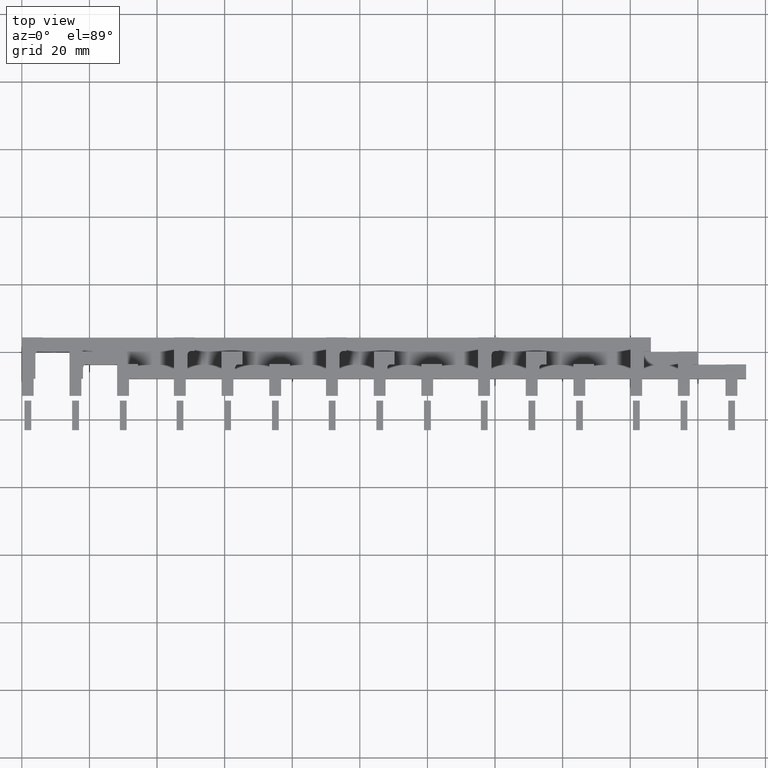
[diagram: clean part render]
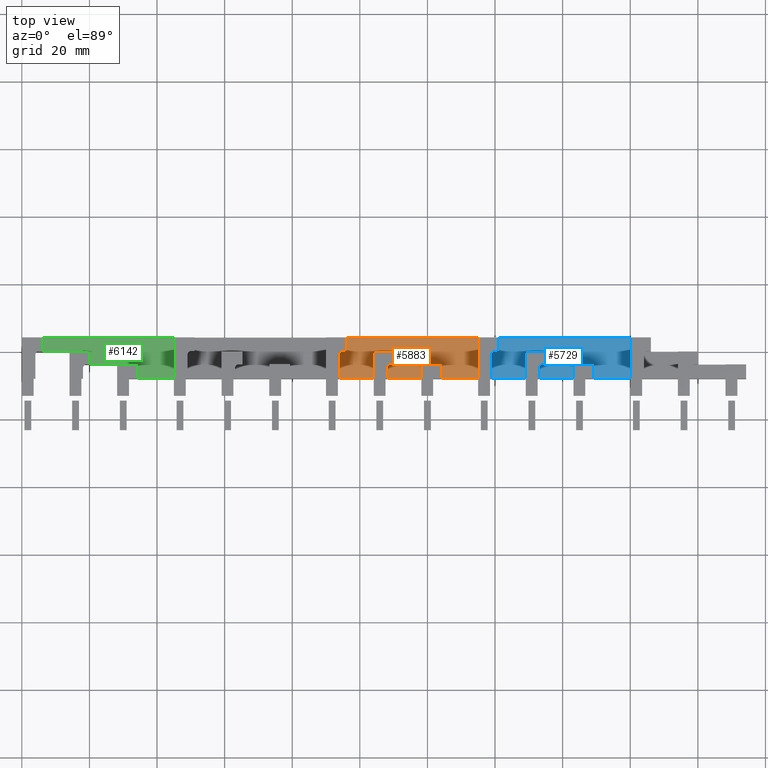
[diagram: same view with three faces highlighted in distinct colors, each labeled with its STEP entity id]
A machine part, top view with three faces highlighted in distinct colors.
Their STEP definitions:

[orange] entity #5883 — the highlighted planar face has unit normal (0, 0, 1).
#5730=CARTESIAN_POINT('',(97.049999999999898,2.100000000004542,103.9999999999916));
#5731=DIRECTION('',(0.0,0.0,1.0));
#5732=DIRECTION('',(1.0,0.0,0.0));
#5733=AXIS2_PLACEMENT_3D('',#5730,#5731,#5732);
#5734=PLANE('',#5733);
#5735=CARTESIAN_POINT('',(108.09999999999981,-7.999999999991588,103.99999999999153));
#5736=VERTEX_POINT('',#5735);
#5737=CARTESIAN_POINT('',(108.0999999999998,-4.799999999998762,103.99999999999153));
#5738=VERTEX_POINT('',#5737);
#5739=CARTESIAN_POINT('',(108.09999999999981,-7.999999999991588,103.99999999999153));
#5740=DIRECTION('',(0.0,1.0,0.0));
#5741=VECTOR('',#5740,3.199999999992827);
#5742=LINE('',#5739,#5741);
#5743=EDGE_CURVE('',#5736,#5738,#5742,.T.);
#5744=ORIENTED_EDGE('',*,*,#5743,.F.);
#5745=CARTESIAN_POINT('',(118.19999999999972,-7.999999999991475,103.99999999999146));
#5746=VERTEX_POINT('',#5745);
#5747=CARTESIAN_POINT('',(108.09999999999982,-7.999999999991532,103.99999999999154));
#5748=DIRECTION('',(1.0,0.0,0.0));
#5749=VECTOR('',#5748,10.099999999999909);
#5750=LINE('',#5747,#5749);
#5751=EDGE_CURVE('',#5736,#5746,#5750,.T.);
#5752=ORIENTED_EDGE('',*,*,#5751,.T.);
#5753=CARTESIAN_POINT('',(118.1999999999997,-3.799999999999359,103.99999999999146));
#5754=VERTEX_POINT('',#5753);
#5755=CARTESIAN_POINT('',(118.19999999999973,-7.999999999991476,103.99999999999146));
#5756=DIRECTION('',(0.0,1.0,0.0));
#5757=VECTOR('',#5756,4.199999999992117);
#5758=LINE('',#5755,#5757);
#5759=EDGE_CURVE('',#5746,#5754,#5758,.T.);
#5760=ORIENTED_EDGE('',*,*,#5759,.T.);
#5761=CARTESIAN_POINT('',(124.29999999999973,-3.799999999999316,103.99999999999142));
#5762=VERTEX_POINT('',#5761);
#5763=CARTESIAN_POINT('',(118.1999999999997,-3.799999999999359,103.99999999999146));
#5764=DIRECTION('',(1.0,0.0,0.0));
#5765=VECTOR('',#5764,6.100000000000023);
#5766=LINE('',#5763,#5765);
#5767=EDGE_CURVE('',#5754,#5762,#5766,.T.);
#5768=ORIENTED_EDGE('',*,*,#5767,.T.);
#5769=CARTESIAN_POINT('',(124.29999999999976,-7.99999999999932,103.99999999999142));
#5770=VERTEX_POINT('',#5769);
#5771=CARTESIAN_POINT('',(124.29999999999973,-3.799999999999316,103.99999999999142));
#5772=DIRECTION('',(0.0,-1.0,0.0));
#5773=VECTOR('',#5772,4.200000000000005);
#5774=LINE('',#5771,#5773);
#5775=EDGE_CURVE('',#5762,#5770,#5774,.T.);
#5776=ORIENTED_EDGE('',*,*,#5775,.T.);
#5777=CARTESIAN_POINT('',(134.99999999999994,-7.999999999991362,103.99999999999136));
#5778=VERTEX_POINT('',#5777);
#5779=CARTESIAN_POINT('',(124.29999999999976,-7.999999999991425,103.99999999999143));
#5780=DIRECTION('',(1.0,0.0,0.0));
#5781=VECTOR('',#5780,10.700000000000216);
#5782=LINE('',#5779,#5781);
#5783=EDGE_CURVE('',#5770,#5778,#5782,.T.);
#5784=ORIENTED_EDGE('',*,*,#5783,.T.);
#5785=CARTESIAN_POINT('',(135.00000000000006,4.200000000008687,103.99999999999136));
#5786=VERTEX_POINT('',#5785);
#5787=CARTESIAN_POINT('',(135.00000000000006,4.200000000008687,103.99999999999136));
#5788=DIRECTION('',(0.0,-1.0,0.0));
#5789=VECTOR('',#5788,12.200000000000049);
#5790=LINE('',#5787,#5789);
#5791=EDGE_CURVE('',#5786,#5778,#5790,.T.);
#5792=ORIENTED_EDGE('',*,*,#5791,.F.);
#5793=CARTESIAN_POINT('',(96.099999999999724,4.200000000008417,103.9999999999916));
#5794=VERTEX_POINT('',#5793);
#5795=CARTESIAN_POINT('',(135.00000000000006,4.200000000008683,103.99999999999135));
#5796=DIRECTION('',(-1.0,0.0,0.0));
#5797=VECTOR('',#5796,38.900000000000318);
#5798=LINE('',#5795,#5797);
#5799=EDGE_CURVE('',#5786,#5794,#5798,.T.);
#5800=ORIENTED_EDGE('',*,*,#5799,.T.);
#5801=CARTESIAN_POINT('',(96.099999999999767,0.100000000000108,103.9999999999916));
#5802=VERTEX_POINT('',#5801);
#5803=CARTESIAN_POINT('',(96.099999999999767,0.100000000000108,103.9999999999916));
#5804=DIRECTION('',(0.0,1.0,0.0));
#5805=VECTOR('',#5804,4.100000000008309);
#5806=LINE('',#5803,#5805);
#5807=EDGE_CURVE('',#5802,#5794,#5806,.T.);
#5808=ORIENTED_EDGE('',*,*,#5807,.F.);
#5809=CARTESIAN_POINT('',(94.999999999999972,0.100000000000108,103.99999999999162));
#5810=VERTEX_POINT('',#5809);
#5811=CARTESIAN_POINT('',(94.999999999999972,0.100000000000108,103.99999999999162));
#5812=DIRECTION('',(1.0,0.0,0.0));
#5813=VECTOR('',#5812,1.099999999999795);
#5814=LINE('',#5811,#5813);
#5815=EDGE_CURVE('',#5810,#5802,#5814,.T.);
#5816=ORIENTED_EDGE('',*,*,#5815,.F.);
#5817=CARTESIAN_POINT('',(93.999999999999972,-0.899999999999878,103.99999999999164));
#5818=VERTEX_POINT('',#5817);
#5819=CARTESIAN_POINT('',(94.999999999999986,-0.899999999999892,103.99999999999162));
#5820=DIRECTION('',(-3.378905E-015,3.378905E-015,-1.0));
#5821=DIRECTION('',(-0.707106781186542,0.707106781186553,4.778493E-015));
#5822=AXIS2_PLACEMENT_3D('',#5819,#5820,#5821);
#5823=CIRCLE('',#5822,1.0);
#5824=EDGE_CURVE('',#5818,#5810,#5823,.T.);
#5825=ORIENTED_EDGE('',*,*,#5824,.F.);
#5826=CARTESIAN_POINT('',(94.000000000000028,-7.999999999991461,103.99999999999164));
#5827=VERTEX_POINT('',#5826);
#5828=CARTESIAN_POINT('',(94.000000000000028,-7.999999999991461,103.99999999999164));
#5829=DIRECTION('',(0.0,1.0,0.0));
#5830=VECTOR('',#5829,7.099999999991583);
#5831=LINE('',#5828,#5830);
#5832=EDGE_CURVE('',#5827,#5818,#5831,.T.);
#5833=ORIENTED_EDGE('',*,*,#5832,.F.);
#5834=CARTESIAN_POINT('',(104.09999999999982,-7.999999999991561,103.99999999999156));
#5835=VERTEX_POINT('',#5834);
#5836=CARTESIAN_POINT('',(94.000000000000028,-7.999999999991626,103.99999999999164));
#5837=DIRECTION('',(1.0,0.0,0.0));
#5838=VECTOR('',#5837,10.099999999999795);
#5839=LINE('',#5836,#5838);
#5840=EDGE_CURVE('',#5827,#5835,#5839,.T.);
#5841=ORIENTED_EDGE('',*,*,#5840,.T.);
#5842=CARTESIAN_POINT('',(104.09999999999975,7.105427E-013,103.99999999999156));
#5843=VERTEX_POINT('',#5842);
#5844=CARTESIAN_POINT('',(104.09999999999975,7.105427E-013,103.99999999999156));
#5845=DIRECTION('',(0.0,-1.0,0.0));
#5846=VECTOR('',#5845,7.999999999992271);
#5847=LINE('',#5844,#5846);
#5848=EDGE_CURVE('',#5843,#5835,#5847,.T.);
#5849=ORIENTED_EDGE('',*,*,#5848,.F.);
#5850=CARTESIAN_POINT('',(110.19999999999973,9.947598E-013,103.99999999999153));
#5851=VERTEX_POINT('',#5850);
#5852=CARTESIAN_POINT('',(110.19999999999973,9.947598E-013,103.99999999999153));
#5853=DIRECTION('',(-1.0,0.0,0.0));
#5854=VECTOR('',#5853,6.099999999999966);
#5855=LINE('',#5852,#5854);
#5856=EDGE_CURVE('',#5851,#5843,#5855,.T.);
#5857=ORIENTED_EDGE('',*,*,#5856,.F.);
#5858=CARTESIAN_POINT('',(110.19999999999931,-3.799999999998733,103.99999999999153));
#5859=VERTEX_POINT('',#5858);
#5860=CARTESIAN_POINT('',(110.19999999999931,-3.799999999998733,103.99999999999153));
#5861=DIRECTION('',(1.121910E-013,1.0,0.0));
#5862=VECTOR('',#5861,3.799999999999728);
#5863=LINE('',#5860,#5862);
#5864=EDGE_CURVE('',#5859,#5851,#5863,.T.);
#5865=ORIENTED_EDGE('',*,*,#5864,.F.);
#5866=CARTESIAN_POINT('',(109.0999999999998,-3.799999999998762,103.99999999999153));
#5867=VERTEX_POINT('',#5866);
#5868=CARTESIAN_POINT('',(109.0999999999998,-3.799999999998762,103.99999999999153));
#5869=DIRECTION('',(1.0,0.0,0.0));
#5870=VECTOR('',#5869,1.099999999999511);
#5871=LINE('',#5868,#5870);
#5872=EDGE_CURVE('',#5867,#5859,#5871,.T.);
#5873=ORIENTED_EDGE('',*,*,#5872,.F.);
#5874=CARTESIAN_POINT('',(109.09999999999974,-4.799999999998705,103.99999999999153));
#5875=DIRECTION('',(-3.378905E-015,3.378905E-015,-1.0));
#5876=DIRECTION('',(-0.707106781186552,0.707106781186543,4.778493E-015));
#5877=AXIS2_PLACEMENT_3D('',#5874,#5875,#5876);
#5878=CIRCLE('',#5877,0.999999999999943);
#5879=EDGE_CURVE('',#5738,#5867,#5878,.T.);
#5880=ORIENTED_EDGE('',*,*,#5879,.F.);
#5881=EDGE_LOOP('',(#5744,#5752,#5760,#5768,#5776,#5784,#5792,#5800,#5808,#5816,#5825,#5833,#5841,#5849,#5857,#5865,#5873,#5880));
#5882=FACE_OUTER_BOUND('',#5881,.T.);
#5883=ADVANCED_FACE('',(#5882),#5734,.T.);

[blue] entity #5729 — the highlighted planar face has unit normal (0, 0, 1).
#5576=CARTESIAN_POINT('',(97.049999999999898,2.100000000004542,103.9999999999916));
#5577=DIRECTION('',(0.0,0.0,1.0));
#5578=DIRECTION('',(1.0,0.0,0.0));
#5579=AXIS2_PLACEMENT_3D('',#5576,#5577,#5578);
#5580=PLANE('',#5579);
#5581=CARTESIAN_POINT('',(139.0,-7.999999999991162,103.99999999999132));
#5582=VERTEX_POINT('',#5581);
#5583=CARTESIAN_POINT('',(138.99999999999997,-0.899999999999579,103.99999999999132));
#5584=VERTEX_POINT('',#5583);
#5585=CARTESIAN_POINT('',(139.0,-7.999999999991162,103.99999999999132));
#5586=DIRECTION('',(0.0,1.0,0.0));
#5587=VECTOR('',#5586,7.099999999991583);
#5588=LINE('',#5585,#5587);
#5589=EDGE_CURVE('',#5582,#5584,#5588,.T.);
#5590=ORIENTED_EDGE('',*,*,#5589,.F.);
#5591=CARTESIAN_POINT('',(149.0999999999998,-7.999999999991262,103.99999999999125));
#5592=VERTEX_POINT('',#5591);
#5593=CARTESIAN_POINT('',(139.00000000000003,-7.999999999991327,103.99999999999133));
#5594=DIRECTION('',(1.0,0.0,0.0));
#5595=VECTOR('',#5594,10.099999999999795);
#5596=LINE('',#5593,#5595);
#5597=EDGE_CURVE('',#5582,#5592,#5596,.T.);
#5598=ORIENTED_EDGE('',*,*,#5597,.T.);
#5599=CARTESIAN_POINT('',(149.09999999999977,1.008971E-012,103.99999999999125));
#5600=VERTEX_POINT('',#5599);
#5601=CARTESIAN_POINT('',(149.09999999999977,1.008971E-012,103.99999999999125));
#5602=DIRECTION('',(0.0,-1.0,0.0));
#5603=VECTOR('',#5602,7.999999999992271);
#5604=LINE('',#5601,#5603);
#5605=EDGE_CURVE('',#5600,#5592,#5604,.T.);
#5606=ORIENTED_EDGE('',*,*,#5605,.F.);
#5607=CARTESIAN_POINT('',(155.19999999999973,1.293188E-012,103.99999999999122));
#5608=VERTEX_POINT('',#5607);
#5609=CARTESIAN_POINT('',(155.19999999999973,1.293188E-012,103.99999999999122));
#5610=DIRECTION('',(-1.0,0.0,0.0));
#5611=VECTOR('',#5610,6.099999999999966);
#5612=LINE('',#5609,#5611);
#5613=EDGE_CURVE('',#5608,#5600,#5612,.T.);
#5614=ORIENTED_EDGE('',*,*,#5613,.F.);
#5615=CARTESIAN_POINT('',(155.19999999999928,-3.799999999998435,103.99999999999122));
#5616=VERTEX_POINT('',#5615);
#5617=CARTESIAN_POINT('',(155.19999999999928,-3.799999999998435,103.99999999999122));
#5618=DIRECTION('',(1.121910E-013,1.0,0.0));
#5619=VECTOR('',#5618,3.799999999999728);
#5620=LINE('',#5617,#5619);
#5621=EDGE_CURVE('',#5616,#5608,#5620,.T.);
#5622=ORIENTED_EDGE('',*,*,#5621,.F.);
#5623=CARTESIAN_POINT('',(154.09999999999977,-3.799999999998463,103.99999999999123));
#5624=VERTEX_POINT('',#5623);
#5625=CARTESIAN_POINT('',(154.09999999999977,-3.799999999998463,103.99999999999123));
#5626=DIRECTION('',(1.0,0.0,0.0));
#5627=VECTOR('',#5626,1.099999999999511);
#5628=LINE('',#5625,#5627);
#5629=EDGE_CURVE('',#5624,#5616,#5628,.T.);
#5630=ORIENTED_EDGE('',*,*,#5629,.F.);
#5631=CARTESIAN_POINT('',(153.0999999999998,-4.799999999998463,103.99999999999123));
#5632=VERTEX_POINT('',#5631);
#5633=CARTESIAN_POINT('',(154.09999999999974,-4.799999999998406,103.99999999999123));
#5634=DIRECTION('',(-3.378905E-015,3.378905E-015,-1.0));
#5635=DIRECTION('',(-0.707106781186552,0.707106781186543,4.778493E-015));
#5636=AXIS2_PLACEMENT_3D('',#5633,#5634,#5635);
#5637=CIRCLE('',#5636,0.999999999999943);
#5638=EDGE_CURVE('',#5632,#5624,#5637,.T.);
#5639=ORIENTED_EDGE('',*,*,#5638,.F.);
#5640=CARTESIAN_POINT('',(153.0999999999998,-7.999999999991291,103.99999999999123));
#5641=VERTEX_POINT('',#5640);
#5642=CARTESIAN_POINT('',(153.0999999999998,-7.999999999991291,103.99999999999123));
#5643=DIRECTION('',(0.0,1.0,0.0));
#5644=VECTOR('',#5643,3.199999999992827);
#5645=LINE('',#5642,#5644);
#5646=EDGE_CURVE('',#5641,#5632,#5645,.T.);
#5647=ORIENTED_EDGE('',*,*,#5646,.F.);
#5648=CARTESIAN_POINT('',(163.1999999999997,-7.999999999991177,103.99999999999118));
#5649=VERTEX_POINT('',#5648);
#5650=CARTESIAN_POINT('',(153.09999999999982,-7.999999999991234,103.99999999999123));
#5651=DIRECTION('',(1.0,0.0,0.0));
#5652=VECTOR('',#5651,10.099999999999909);
#5653=LINE('',#5650,#5652);
#5654=EDGE_CURVE('',#5641,#5649,#5653,.T.);
#5655=ORIENTED_EDGE('',*,*,#5654,.T.);
#5656=CARTESIAN_POINT('',(163.19999999999968,-3.79999999999906,103.99999999999118));
#5657=VERTEX_POINT('',#5656);
#5658=CARTESIAN_POINT('',(163.19999999999973,-7.999999999991178,103.99999999999118));
#5659=DIRECTION('',(0.0,1.0,0.0));
#5660=VECTOR('',#5659,4.199999999992117);
#5661=LINE('',#5658,#5660);
#5662=EDGE_CURVE('',#5649,#5657,#5661,.T.);
#5663=ORIENTED_EDGE('',*,*,#5662,.T.);
#5664=CARTESIAN_POINT('',(169.29999999999973,-3.799999999999018,103.99999999999112));
#5665=VERTEX_POINT('',#5664);
#5666=CARTESIAN_POINT('',(163.19999999999968,-3.79999999999906,103.99999999999118));
#5667=DIRECTION('',(1.0,0.0,0.0));
#5668=VECTOR('',#5667,6.100000000000023);
#5669=LINE('',#5666,#5668);
#5670=EDGE_CURVE('',#5657,#5665,#5669,.T.);
#5671=ORIENTED_EDGE('',*,*,#5670,.T.);
#5672=CARTESIAN_POINT('',(169.29999999999976,-7.999999999999021,103.99999999999112));
#5673=VERTEX_POINT('',#5672);
#5674=CARTESIAN_POINT('',(169.29999999999973,-3.799999999999018,103.99999999999112));
#5675=DIRECTION('',(0.0,-1.0,0.0));
#5676=VECTOR('',#5675,4.200000000000004);
#5677=LINE('',#5674,#5676);
#5678=EDGE_CURVE('',#5665,#5673,#5677,.T.);
#5679=ORIENTED_EDGE('',*,*,#5678,.T.);
#5680=CARTESIAN_POINT('',(179.99999999999997,-7.999999999991063,103.99999999999103));
#5681=VERTEX_POINT('',#5680);
#5682=CARTESIAN_POINT('',(169.29999999999976,-7.999999999991125,103.99999999999113));
#5683=DIRECTION('',(1.0,0.0,0.0));
#5684=VECTOR('',#5683,10.700000000000216);
#5685=LINE('',#5682,#5684);
#5686=EDGE_CURVE('',#5673,#5681,#5685,.T.);
#5687=ORIENTED_EDGE('',*,*,#5686,.T.);
#5688=CARTESIAN_POINT('',(180.00000000000006,4.200000000008985,103.99999999999103));
#5689=VERTEX_POINT('',#5688);
#5690=CARTESIAN_POINT('',(180.00000000000006,4.200000000008985,103.99999999999103));
#5691=DIRECTION('',(0.0,-1.0,0.0));
#5692=VECTOR('',#5691,12.200000000000049);
#5693=LINE('',#5690,#5692);
#5694=EDGE_CURVE('',#5689,#5681,#5693,.T.);
#5695=ORIENTED_EDGE('',*,*,#5694,.F.);
#5696=CARTESIAN_POINT('',(141.09999999999974,4.200000000008715,103.99999999999132));
#5697=VERTEX_POINT('',#5696);
#5698=CARTESIAN_POINT('',(180.00000000000006,4.200000000008981,103.99999999999103));
#5699=DIRECTION('',(-1.0,0.0,0.0));
#5700=VECTOR('',#5699,38.900000000000318);
#5701=LINE('',#5698,#5700);
#5702=EDGE_CURVE('',#5689,#5697,#5701,.T.);
#5703=ORIENTED_EDGE('',*,*,#5702,.T.);
#5704=CARTESIAN_POINT('',(141.09999999999977,0.100000000000406,103.99999999999132));
#5705=VERTEX_POINT('',#5704);
#5706=CARTESIAN_POINT('',(141.09999999999977,0.100000000000406,103.99999999999132));
#5707=DIRECTION('',(0.0,1.0,0.0));
#5708=VECTOR('',#5707,4.100000000008309);
#5709=LINE('',#5706,#5708);
#5710=EDGE_CURVE('',#5705,#5697,#5709,.T.);
#5711=ORIENTED_EDGE('',*,*,#5710,.F.);
#5712=CARTESIAN_POINT('',(139.99999999999997,0.100000000000406,103.99999999999132));
#5713=VERTEX_POINT('',#5712);
#5714=CARTESIAN_POINT('',(139.99999999999997,0.100000000000406,103.99999999999132));
#5715=DIRECTION('',(1.0,0.0,0.0));
#5716=VECTOR('',#5715,1.099999999999795);
#5717=LINE('',#5714,#5716);
#5718=EDGE_CURVE('',#5713,#5705,#5717,.T.);
#5719=ORIENTED_EDGE('',*,*,#5718,.F.);
#5720=CARTESIAN_POINT('',(139.99999999999997,-0.899999999999594,103.99999999999132));
#5721=DIRECTION('',(-3.378905E-015,3.378905E-015,-1.0));
#5722=DIRECTION('',(-0.707106781186542,0.707106781186553,4.778493E-015));
#5723=AXIS2_PLACEMENT_3D('',#5720,#5721,#5722);
#5724=CIRCLE('',#5723,1.0);
#5725=EDGE_CURVE('',#5584,#5713,#5724,.T.);
#5726=ORIENTED_EDGE('',*,*,#5725,.F.);
#5727=EDGE_LOOP('',(#5590,#5598,#5606,#5614,#5622,#5630,#5639,#5647,#5655,#5663,#5671,#5679,#5687,#5695,#5703,#5711,#5719,#5726));
#5728=FACE_OUTER_BOUND('',#5727,.T.);
#5729=ADVANCED_FACE('',(#5728),#5580,.T.);

[green] entity #6142 — the highlighted planar face has unit normal (0, 0, 1).
#6038=CARTESIAN_POINT('',(97.049999999999898,2.100000000004542,103.9999999999916));
#6039=DIRECTION('',(0.0,0.0,1.0));
#6040=DIRECTION('',(1.0,0.0,0.0));
#6041=AXIS2_PLACEMENT_3D('',#6038,#6039,#6040);
#6042=PLANE('',#6041);
#6043=CARTESIAN_POINT('',(20.199999999999292,-3.79999999999933,103.99999999999213));
#6044=VERTEX_POINT('',#6043);
#6045=CARTESIAN_POINT('',(20.199999999999719,3.979039E-013,103.99999999999213));
#6046=VERTEX_POINT('',#6045);
#6047=CARTESIAN_POINT('',(20.199999999999292,-3.79999999999933,103.99999999999213));
#6048=DIRECTION('',(1.131259E-013,1.0,0.0));
#6049=VECTOR('',#6048,3.799999999999728);
#6050=LINE('',#6047,#6049);
#6051=EDGE_CURVE('',#6044,#6046,#6050,.T.);
#6052=ORIENTED_EDGE('',*,*,#6051,.F.);
#6053=CARTESIAN_POINT('',(28.19999999999968,-3.799999999999955,103.99999999999208));
#6054=VERTEX_POINT('',#6053);
#6055=CARTESIAN_POINT('',(20.199999999999292,-3.799999999999338,103.99999999999214));
#6056=DIRECTION('',(1.0,0.0,0.0));
#6057=VECTOR('',#6056,8.000000000000384);
#6058=LINE('',#6055,#6057);
#6059=EDGE_CURVE('',#6044,#6054,#6058,.T.);
#6060=ORIENTED_EDGE('',*,*,#6059,.T.);
#6061=CARTESIAN_POINT('',(34.299999999999706,-3.799999999999913,103.99999999999203));
#6062=VERTEX_POINT('',#6061);
#6063=CARTESIAN_POINT('',(28.19999999999968,-3.799999999999955,103.99999999999208));
#6064=DIRECTION('',(1.0,0.0,0.0));
#6065=VECTOR('',#6064,6.100000000000026);
#6066=LINE('',#6063,#6065);
#6067=EDGE_CURVE('',#6054,#6062,#6066,.T.);
#6068=ORIENTED_EDGE('',*,*,#6067,.T.);
#6069=CARTESIAN_POINT('',(34.299999999999734,-7.999999999999917,103.99999999999203));
#6070=VERTEX_POINT('',#6069);
#6071=CARTESIAN_POINT('',(34.299999999999706,-3.799999999999913,103.99999999999203));
#6072=DIRECTION('',(0.0,-1.0,0.0));
#6073=VECTOR('',#6072,4.200000000000004);
#6074=LINE('',#6071,#6073);
#6075=EDGE_CURVE('',#6062,#6070,#6074,.T.);
#6076=ORIENTED_EDGE('',*,*,#6075,.T.);
#6077=CARTESIAN_POINT('',(44.999999999999957,-7.999999999991958,103.99999999999196));
#6078=VERTEX_POINT('',#6077);
#6079=CARTESIAN_POINT('',(34.299999999999727,-7.999999999992022,103.99999999999204));
#6080=DIRECTION('',(1.0,0.0,0.0));
#6081=VECTOR('',#6080,10.700000000000216);
#6082=LINE('',#6079,#6081);
#6083=EDGE_CURVE('',#6070,#6078,#6082,.T.);
#6084=ORIENTED_EDGE('',*,*,#6083,.T.);
#6085=CARTESIAN_POINT('',(45.000000000000036,4.20000000000809,103.99999999999196));
#6086=VERTEX_POINT('',#6085);
#6087=CARTESIAN_POINT('',(45.000000000000036,4.20000000000809,103.99999999999196));
#6088=DIRECTION('',(0.0,-1.0,0.0));
#6089=VECTOR('',#6088,12.200000000000049);
#6090=LINE('',#6087,#6089);
#6091=EDGE_CURVE('',#6086,#6078,#6090,.T.);
#6092=ORIENTED_EDGE('',*,*,#6091,.F.);
#6093=CARTESIAN_POINT('',(6.099999999999697,4.20000000000782,103.99999999999224));
#6094=VERTEX_POINT('',#6093);
#6095=CARTESIAN_POINT('',(45.000000000000043,4.200000000008085,103.99999999999196));
#6096=DIRECTION('',(-1.0,0.0,0.0));
#6097=VECTOR('',#6096,38.900000000000333);
#6098=LINE('',#6095,#6097);
#6099=EDGE_CURVE('',#6086,#6094,#6098,.T.);
#6100=ORIENTED_EDGE('',*,*,#6099,.T.);
#6101=CARTESIAN_POINT('',(6.099999999999738,0.099999999999511,103.99999999999224));
#6102=VERTEX_POINT('',#6101);
#6103=CARTESIAN_POINT('',(6.099999999999738,0.099999999999511,103.99999999999224));
#6104=DIRECTION('',(0.0,1.0,0.0));
#6105=VECTOR('',#6104,4.100000000008309);
#6106=LINE('',#6103,#6105);
#6107=EDGE_CURVE('',#6102,#6094,#6106,.T.);
#6108=ORIENTED_EDGE('',*,*,#6107,.F.);
#6109=CARTESIAN_POINT('',(4.999999999999942,0.099999999999497,103.99999999999224));
#6110=VERTEX_POINT('',#6109);
#6111=CARTESIAN_POINT('',(4.999999999999942,0.099999999999497,103.99999999999224));
#6112=DIRECTION('',(1.0,0.0,0.0));
#6113=VECTOR('',#6112,1.099999999999795);
#6114=LINE('',#6111,#6113);
#6115=EDGE_CURVE('',#6110,#6102,#6114,.T.);
#6116=ORIENTED_EDGE('',*,*,#6115,.F.);
#6117=CARTESIAN_POINT('',(4.564110105647004,4.263256E-014,103.99999999999224));
#6118=VERTEX_POINT('',#6117);
#6119=CARTESIAN_POINT('',(4.999999999999949,-0.900000000000503,103.99999999999224));
#6120=DIRECTION('',(-3.378905E-015,3.378905E-015,-1.0));
#6121=DIRECTION('',(-0.707106781186542,0.707106781186553,4.778493E-015));
#6122=AXIS2_PLACEMENT_3D('',#6119,#6120,#6121);
#6123=CIRCLE('',#6122,1.0);
#6124=EDGE_CURVE('',#6118,#6110,#6123,.T.);
#6125=ORIENTED_EDGE('',*,*,#6124,.F.);
#6126=CARTESIAN_POINT('',(14.099999999999739,1.136868E-013,103.99999999999217));
#6127=VERTEX_POINT('',#6126);
#6128=CARTESIAN_POINT('',(4.564110105647004,3.927477E-014,103.99999999999223));
#6129=DIRECTION('',(1.0,0.0,0.0));
#6130=VECTOR('',#6129,9.535889894352735);
#6131=LINE('',#6128,#6130);
#6132=EDGE_CURVE('',#6118,#6127,#6131,.T.);
#6133=ORIENTED_EDGE('',*,*,#6132,.T.);
#6134=CARTESIAN_POINT('',(20.199999999999719,3.979039E-013,103.99999999999213));
#6135=DIRECTION('',(-1.0,0.0,0.0));
#6136=VECTOR('',#6135,6.099999999999982);
#6137=LINE('',#6134,#6136);
#6138=EDGE_CURVE('',#6046,#6127,#6137,.T.);
#6139=ORIENTED_EDGE('',*,*,#6138,.F.);
#6140=EDGE_LOOP('',(#6052,#6060,#6068,#6076,#6084,#6092,#6100,#6108,#6116,#6125,#6133,#6139));
#6141=FACE_OUTER_BOUND('',#6140,.T.);
#6142=ADVANCED_FACE('',(#6141),#6042,.T.);